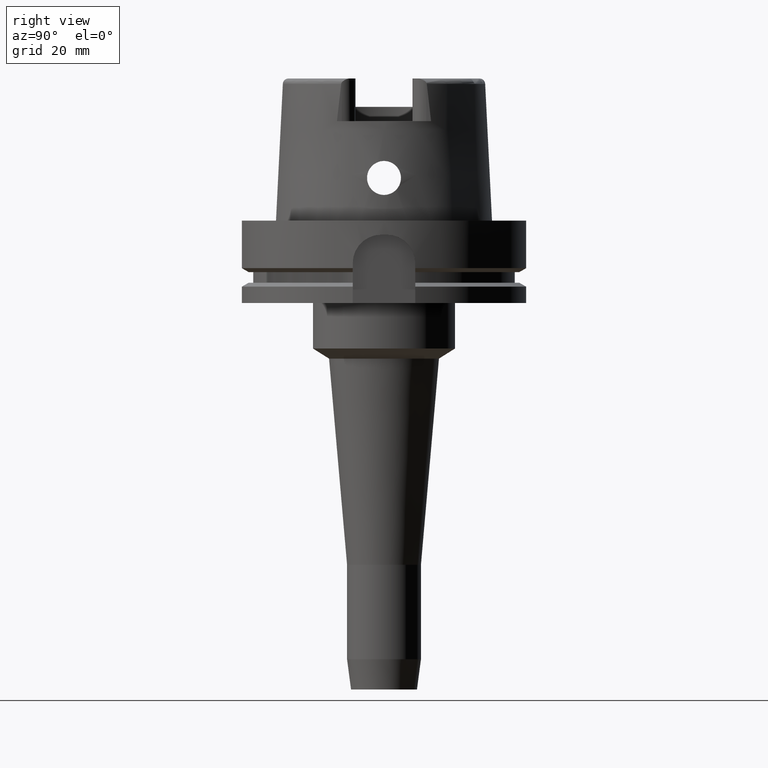
[diagram: clean part render]
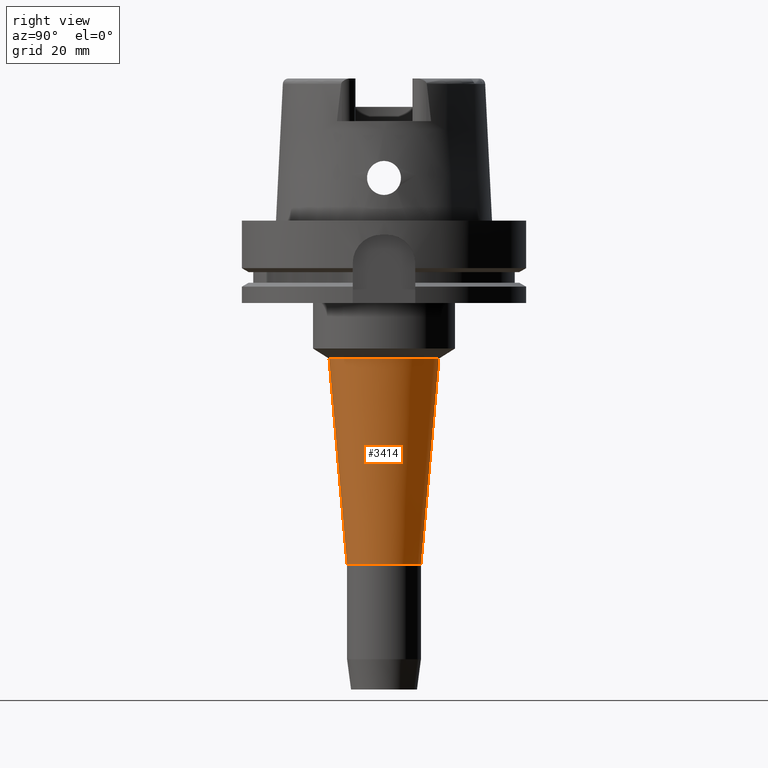
[diagram: same view with one face highlighted and labeled with its STEP entity id]
A machine part, right view. The second image highlights one B-rep face of the part: STEP entity #3414.
In plain terms, the highlighted conical surface has half-angle 4.994 deg.
Its self-contained STEP definition (entity closure, byte-faithful):
#1135=DIRECTION('',(0.E0,-8.705142100512E-2,-9.962038195575E-1));
#1136=VECTOR('',#1135,7.280251071145E1);
#1137=CARTESIAN_POINT('',(0.E0,1.933756201017E1,-4.856086075588E1));
#1138=LINE('',#1137,#1136);
#1142=CARTESIAN_POINT('',(0.E0,0.E0,-1.21087E2));
#1143=DIRECTION('',(0.E0,0.E0,-1.E0));
#1144=DIRECTION('',(0.E0,1.E0,0.E0));
#1145=AXIS2_PLACEMENT_3D('',#1142,#1143,#1144);
#1150=CARTESIAN_POINT('',(0.E0,0.E0,-4.856086075588E1));
#1151=DIRECTION('',(0.E0,0.E0,1.E0));
#1152=DIRECTION('',(0.E0,-1.E0,0.E0));
#1153=AXIS2_PLACEMENT_3D('',#1150,#1151,#1152);
#1158=DIRECTION('',(0.E0,8.705142100512E-2,-9.962038195575E-1));
#1159=VECTOR('',#1158,7.280251071145E1);
#1160=CARTESIAN_POINT('',(0.E0,-1.933756201017E1,-4.856086075588E1));
#1161=LINE('',#1160,#1159);
#2413=CARTESIAN_POINT('',(0.E0,1.3E1,-1.21087E2));
#2414=VERTEX_POINT('',#2413);
#2415=CARTESIAN_POINT('',(0.E0,-1.3E1,-1.21087E2));
#2416=VERTEX_POINT('',#2415);
#2417=CARTESIAN_POINT('',(0.E0,1.933756201017E1,-4.856086075588E1));
#2418=VERTEX_POINT('',#2417);
#2419=CARTESIAN_POINT('',(0.E0,-1.933756201017E1,-4.856086075588E1));
#2420=VERTEX_POINT('',#2419);
#3400=CARTESIAN_POINT('',(0.E0,0.E0,-8.482393037794E1));
#3401=DIRECTION('',(0.E0,0.E0,1.E0));
#3402=DIRECTION('',(0.E0,1.E0,0.E0));
#3403=AXIS2_PLACEMENT_3D('',#3400,#3401,#3402);
#3404=CONICAL_SURFACE('',#3403,1.616878100509E1,4.994E0);
#3406=ORIENTED_EDGE('',*,*,#3405,.T.);
#3407=ORIENTED_EDGE('',*,*,#3395,.T.);
#3409=ORIENTED_EDGE('',*,*,#3408,.F.);
#3411=ORIENTED_EDGE('',*,*,#3410,.T.);
#3412=EDGE_LOOP('',(#3406,#3407,#3409,#3411));
#3413=FACE_OUTER_BOUND('',#3412,.F.);
#1146=CIRCLE('',#1145,1.3E1);
#1154=CIRCLE('',#1153,1.933756201018E1);
#3395=EDGE_CURVE('',#2414,#2416,#1146,.T.);
#3405=EDGE_CURVE('',#2418,#2414,#1138,.T.);
#3408=EDGE_CURVE('',#2420,#2416,#1161,.T.);
#3410=EDGE_CURVE('',#2420,#2418,#1154,.T.);
#3414=ADVANCED_FACE('',(#3413),#3404,.T.);